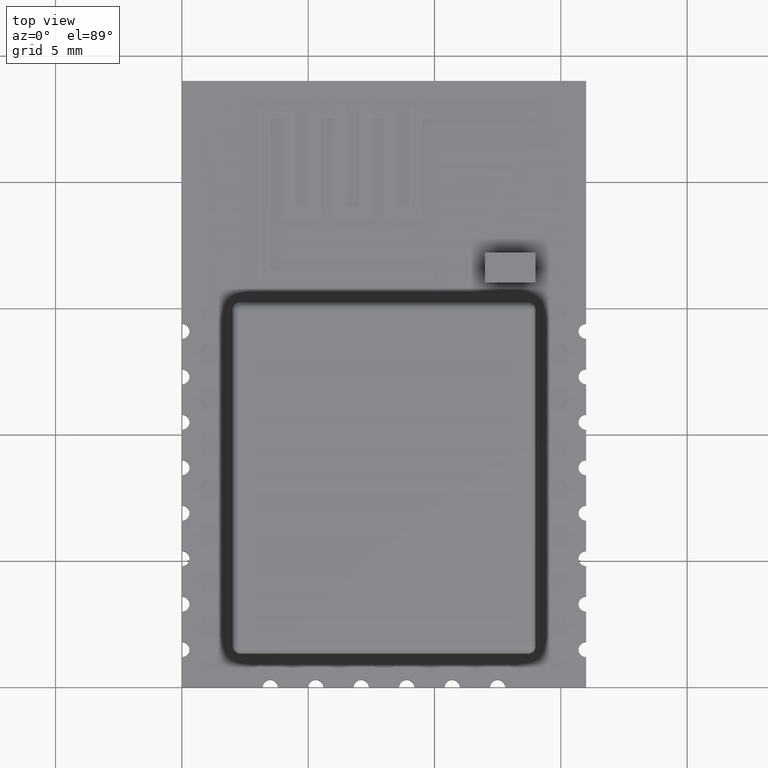
[diagram: clean part render]
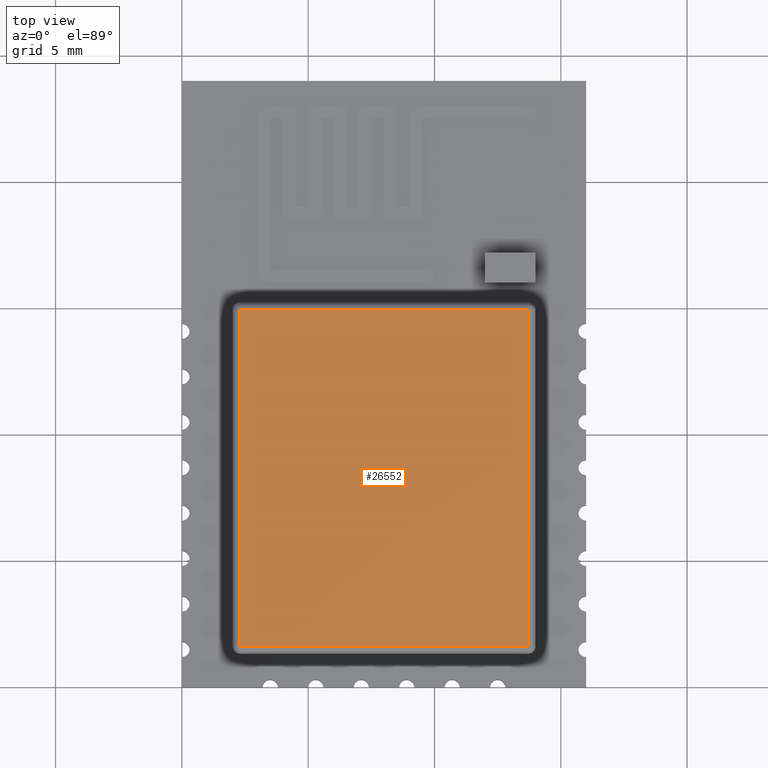
[diagram: same view with one face highlighted and labeled with its STEP entity id]
A machine part, top view. The second image highlights one B-rep face of the part: STEP entity #26552.
In plain terms, the highlighted planar face has unit normal (0, 0, 1).
Its self-contained STEP definition (entity closure, byte-faithful):
#10846 = CYLINDRICAL_SURFACE('',#10847,0.3);
#10847 = AXIS2_PLACEMENT_3D('',#10848,#10849,#10850);
#10848 = CARTESIAN_POINT('',(2.,1.6,2.1));
#10849 = DIRECTION('',(1.,0.,0.));
#10850 = DIRECTION('',(0.,-1.,0.));
#10955 = CYLINDRICAL_SURFACE('',#10956,0.3);
#10956 = AXIS2_PLACEMENT_3D('',#10957,#10958,#10959);
#10957 = CARTESIAN_POINT('',(13.7,1.3,2.1));
#10958 = DIRECTION('',(0.,1.,0.));
#10959 = DIRECTION('',(1.,0.,0.));
#11064 = CYLINDRICAL_SURFACE('',#11065,0.3);
#11065 = AXIS2_PLACEMENT_3D('',#11066,#11067,#11068);
#11066 = CARTESIAN_POINT('',(14.,14.9,2.1));
#11067 = DIRECTION('',(-1.,0.,0.));
#11068 = DIRECTION('',(0.,1.,0.));
#11173 = CYLINDRICAL_SURFACE('',#11174,0.3);
#11174 = AXIS2_PLACEMENT_3D('',#11175,#11176,#11177);
#11175 = CARTESIAN_POINT('',(2.3,15.2,2.1));
#11176 = DIRECTION('',(0.,-1.,0.));
#11177 = DIRECTION('',(-1.,0.,0.));
#20755 = VERTEX_POINT('',#20756);
#20756 = CARTESIAN_POINT('',(2.3,1.6,2.4));
#20776 = EDGE_CURVE('',#20755,#20777,#20779,.T.);
#20777 = VERTEX_POINT('',#20778);
#20778 = CARTESIAN_POINT('',(13.7,1.6,2.4));
#20779 = SURFACE_CURVE('',#20780,(#20784,#20791),.PCURVE_S1.);
#20780 = LINE('',#20781,#20782);
#20781 = CARTESIAN_POINT('',(2.,1.6,2.4));
#20782 = VECTOR('',#20783,1.);
#20783 = DIRECTION('',(1.,0.,0.));
#20784 = PCURVE('',#10846,#20785);
#20785 = DEFINITIONAL_REPRESENTATION('',(#20786),#20790);
#20786 = LINE('',#20787,#20788);
#20787 = CARTESIAN_POINT('',(-1.570796326795,0.));
#20788 = VECTOR('',#20789,1.);
#20789 = DIRECTION('',(-0.,1.));
#20790 = ( GEOMETRIC_REPRESENTATION_CONTEXT(2) 
PARAMETRIC_REPRESENTATION_CONTEXT() REPRESENTATION_CONTEXT('2D SPACE',''
  ) );
#20791 = PCURVE('',#20792,#20797);
#20792 = PLANE('',#20793);
#20793 = AXIS2_PLACEMENT_3D('',#20794,#20795,#20796);
#20794 = CARTESIAN_POINT('',(8.,8.25,2.4));
#20795 = DIRECTION('',(0.,0.,1.));
#20796 = DIRECTION('',(1.,0.,0.));
#20797 = DEFINITIONAL_REPRESENTATION('',(#20798),#20802);
#20798 = LINE('',#20799,#20800);
#20799 = CARTESIAN_POINT('',(-6.,-6.65));
#20800 = VECTOR('',#20801,1.);
#20801 = DIRECTION('',(1.,0.));
#20802 = ( GEOMETRIC_REPRESENTATION_CONTEXT(2) 
PARAMETRIC_REPRESENTATION_CONTEXT() REPRESENTATION_CONTEXT('2D SPACE',''
  ) );
#20854 = EDGE_CURVE('',#20777,#20855,#20857,.T.);
#20855 = VERTEX_POINT('',#20856);
#20856 = CARTESIAN_POINT('',(13.7,14.9,2.4));
#20857 = SURFACE_CURVE('',#20858,(#20862,#20869),.PCURVE_S1.);
#20858 = LINE('',#20859,#20860);
#20859 = CARTESIAN_POINT('',(13.7,1.3,2.4));
#20860 = VECTOR('',#20861,1.);
#20861 = DIRECTION('',(0.,1.,0.));
#20862 = PCURVE('',#10955,#20863);
#20863 = DEFINITIONAL_REPRESENTATION('',(#20864),#20868);
#20864 = LINE('',#20865,#20866);
#20865 = CARTESIAN_POINT('',(-1.570796326795,0.));
#20866 = VECTOR('',#20867,1.);
#20867 = DIRECTION('',(-0.,1.));
#20868 = ( GEOMETRIC_REPRESENTATION_CONTEXT(2) 
PARAMETRIC_REPRESENTATION_CONTEXT() REPRESENTATION_CONTEXT('2D SPACE',''
  ) );
#20869 = PCURVE('',#20792,#20870);
#20870 = DEFINITIONAL_REPRESENTATION('',(#20871),#20875);
#20871 = LINE('',#20872,#20873);
#20872 = CARTESIAN_POINT('',(5.7,-6.95));
#20873 = VECTOR('',#20874,1.);
#20874 = DIRECTION('',(0.,1.));
#20875 = ( GEOMETRIC_REPRESENTATION_CONTEXT(2) 
PARAMETRIC_REPRESENTATION_CONTEXT() REPRESENTATION_CONTEXT('2D SPACE',''
  ) );
#20927 = EDGE_CURVE('',#20855,#20928,#20930,.T.);
#20928 = VERTEX_POINT('',#20929);
#20929 = CARTESIAN_POINT('',(2.3,14.9,2.4));
#20930 = SURFACE_CURVE('',#20931,(#20935,#20942),.PCURVE_S1.);
#20931 = LINE('',#20932,#20933);
#20932 = CARTESIAN_POINT('',(14.,14.9,2.4));
#20933 = VECTOR('',#20934,1.);
#20934 = DIRECTION('',(-1.,0.,0.));
#20935 = PCURVE('',#11064,#20936);
#20936 = DEFINITIONAL_REPRESENTATION('',(#20937),#20941);
#20937 = LINE('',#20938,#20939);
#20938 = CARTESIAN_POINT('',(-1.570796326795,0.));
#20939 = VECTOR('',#20940,1.);
#20940 = DIRECTION('',(-0.,1.));
#20941 = ( GEOMETRIC_REPRESENTATION_CONTEXT(2) 
PARAMETRIC_REPRESENTATION_CONTEXT() REPRESENTATION_CONTEXT('2D SPACE',''
  ) );
#20942 = PCURVE('',#20792,#20943);
#20943 = DEFINITIONAL_REPRESENTATION('',(#20944),#20948);
#20944 = LINE('',#20945,#20946);
#20945 = CARTESIAN_POINT('',(6.,6.65));
#20946 = VECTOR('',#20947,1.);
#20947 = DIRECTION('',(-1.,0.));
#20948 = ( GEOMETRIC_REPRESENTATION_CONTEXT(2) 
PARAMETRIC_REPRESENTATION_CONTEXT() REPRESENTATION_CONTEXT('2D SPACE',''
  ) );
#21000 = EDGE_CURVE('',#20928,#20755,#21001,.T.);
#21001 = SURFACE_CURVE('',#21002,(#21006,#21013),.PCURVE_S1.);
#21002 = LINE('',#21003,#21004);
#21003 = CARTESIAN_POINT('',(2.3,15.2,2.4));
#21004 = VECTOR('',#21005,1.);
#21005 = DIRECTION('',(0.,-1.,0.));
#21006 = PCURVE('',#11173,#21007);
#21007 = DEFINITIONAL_REPRESENTATION('',(#21008),#21012);
#21008 = LINE('',#21009,#21010);
#21009 = CARTESIAN_POINT('',(-1.570796326795,0.));
#21010 = VECTOR('',#21011,1.);
#21011 = DIRECTION('',(-0.,1.));
#21012 = ( GEOMETRIC_REPRESENTATION_CONTEXT(2) 
PARAMETRIC_REPRESENTATION_CONTEXT() REPRESENTATION_CONTEXT('2D SPACE',''
  ) );
#21013 = PCURVE('',#20792,#21014);
#21014 = DEFINITIONAL_REPRESENTATION('',(#21015),#21019);
#21015 = LINE('',#21016,#21017);
#21016 = CARTESIAN_POINT('',(-5.7,6.95));
#21017 = VECTOR('',#21018,1.);
#21018 = DIRECTION('',(0.,-1.));
#21019 = ( GEOMETRIC_REPRESENTATION_CONTEXT(2) 
PARAMETRIC_REPRESENTATION_CONTEXT() REPRESENTATION_CONTEXT('2D SPACE',''
  ) );
#26552 = ADVANCED_FACE('',(#26553),#20792,.T.);
#26553 = FACE_BOUND('',#26554,.T.);
#26554 = EDGE_LOOP('',(#26555,#26556,#26557,#26558));
#26555 = ORIENTED_EDGE('',*,*,#20776,.T.);
#26556 = ORIENTED_EDGE('',*,*,#20854,.T.);
#26557 = ORIENTED_EDGE('',*,*,#20927,.T.);
#26558 = ORIENTED_EDGE('',*,*,#21000,.T.);